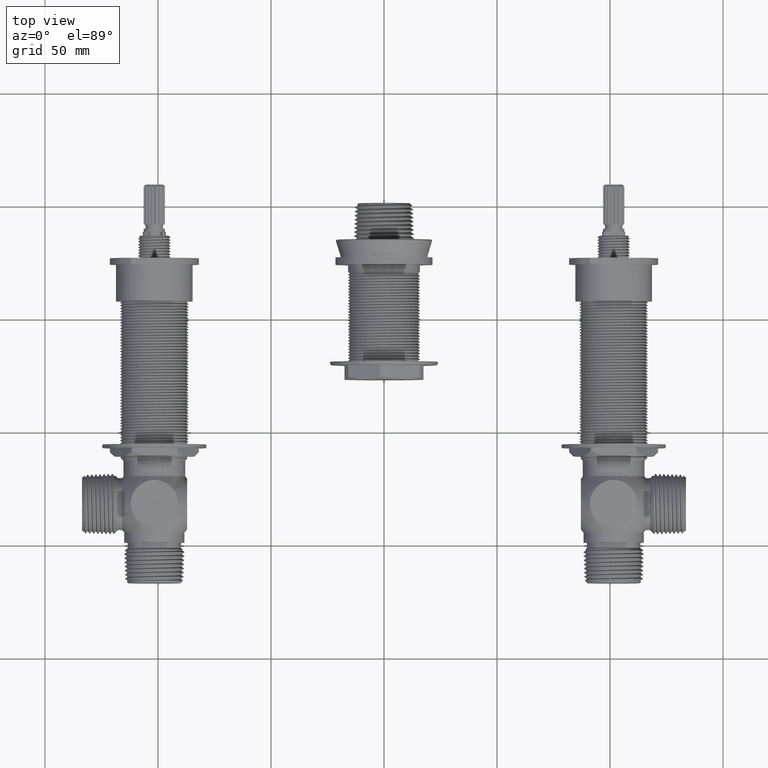
[diagram: clean part render]
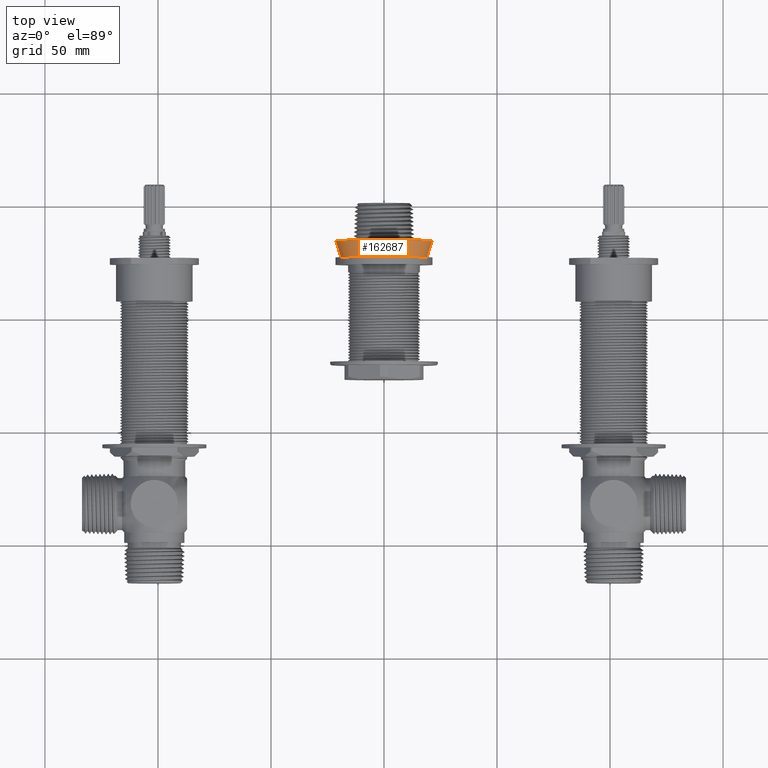
[diagram: same view with one face highlighted and labeled with its STEP entity id]
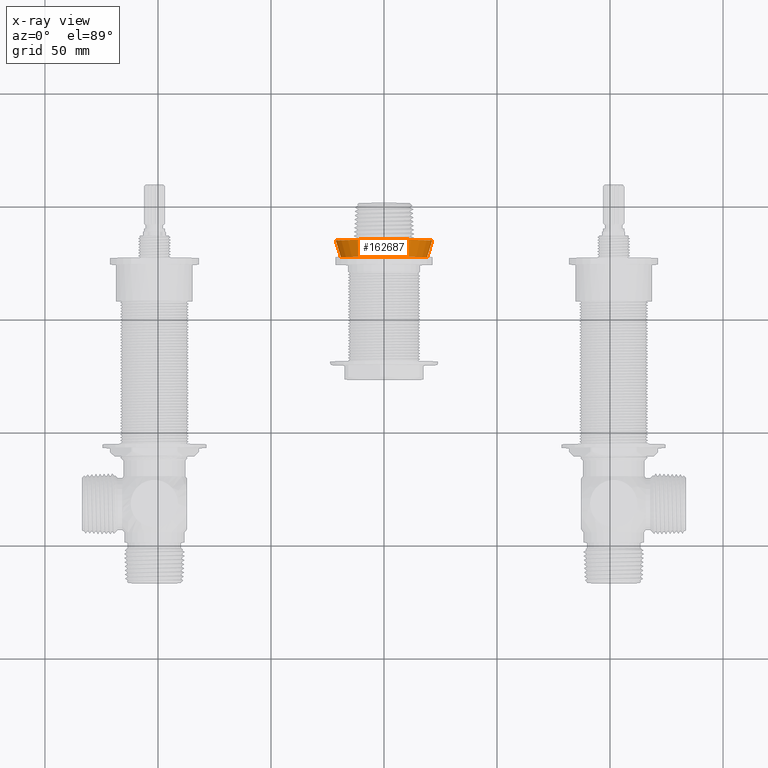
[diagram: x-ray of the same camera — body ghosted, the highlighted face saturated]
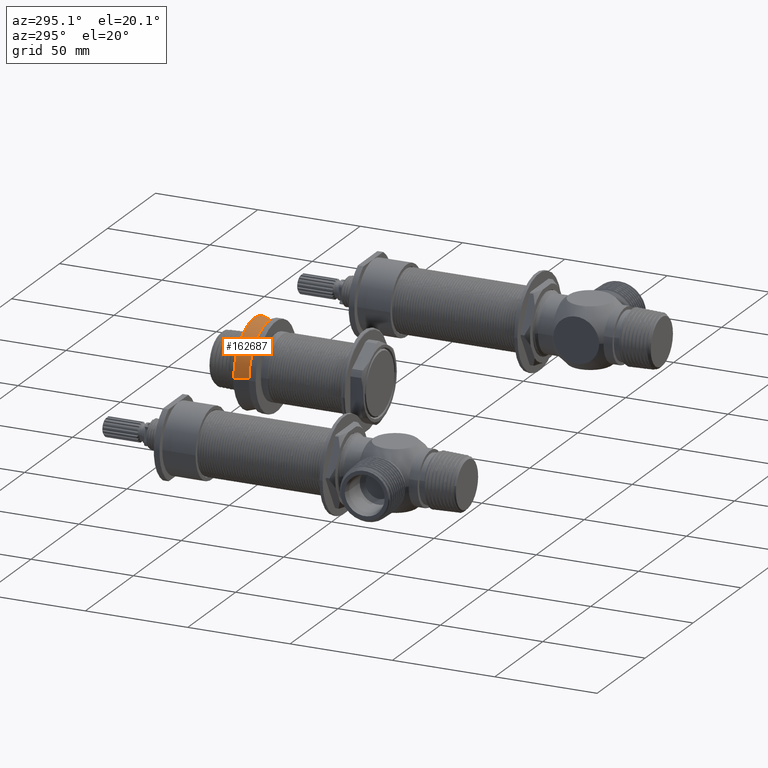
[diagram: same view with one face highlighted and labeled with its STEP entity id]
A machine part, top view. The second image highlights one B-rep face of the part: STEP entity #162687.
The next image is the same camera in x-ray: the body ghosted, the highlighted face saturated — about 0% of this face is hidden behind the body in this view.
A second angle (auxiliary view) of the same face is appended — the face is thin or edge-on in the first view.
In plain terms, the highlighted conical surface has half-angle 17.057 deg.
Its self-contained STEP definition (entity closure, byte-faithful):
#145542=CARTESIAN_POINT('',(0.E0,1.364682891645E0,0.E0));
#145543=DIRECTION('',(0.E0,1.E0,0.E0));
#145544=DIRECTION('',(-1.E0,0.E0,0.E0));
#145545=AXIS2_PLACEMENT_3D('',#145542,#145543,#145544);
#145550=CARTESIAN_POINT('',(0.E0,1.071987E0,0.E0));
#145551=DIRECTION('',(0.E0,-1.E0,0.E0));
#145552=DIRECTION('',(1.E0,0.E0,0.E0));
#145553=AXIS2_PLACEMENT_3D('',#145550,#145551,#145552);
#145596=DIRECTION('',(-2.933225153755E-1,9.560135469614E-1,
-6.094008620866E-10));
#145597=VECTOR('',#145596,3.061627435593E-1);
#145598=CARTESIAN_POINT('',(-7.5E-1,1.071987E0,0.E0));
#145599=LINE('',#145598,#145597);
#145611=DIRECTION('',(2.933225153755E-1,9.560135469614E-1,6.094012428335E-10));
#145612=VECTOR('',#145611,3.061627435593E-1);
#145613=CARTESIAN_POINT('',(7.5E-1,1.071987E0,0.E0));
#145614=LINE('',#145613,#145612);
#150937=CARTESIAN_POINT('',(7.5E-1,1.071987E0,0.E0));
#150938=CARTESIAN_POINT('',(-7.5E-1,1.071987E0,0.E0));
#150939=VERTEX_POINT('',#150937);
#150940=VERTEX_POINT('',#150938);
#151127=CARTESIAN_POINT('',(-8.398044213002E-1,1.364682891645E0,0.E0));
#151128=CARTESIAN_POINT('',(8.398044213002E-1,1.364682891645E0,0.E0));
#151129=VERTEX_POINT('',#151127);
#151130=VERTEX_POINT('',#151128);
#162673=CARTESIAN_POINT('',(0.E0,1.218334957353E0,0.E0));
#162674=DIRECTION('',(0.E0,1.E0,0.E0));
#162675=DIRECTION('',(1.E0,0.E0,0.E0));
#162676=AXIS2_PLACEMENT_3D('',#162673,#162674,#162675);
#162677=CONICAL_SURFACE('',#162676,7.949022141877E-1,1.705696557662E1);
#162679=ORIENTED_EDGE('',*,*,#162678,.T.);
#162681=ORIENTED_EDGE('',*,*,#162680,.F.);
#162682=ORIENTED_EDGE('',*,*,#162654,.T.);
#162684=ORIENTED_EDGE('',*,*,#162683,.T.);
#162685=EDGE_LOOP('',(#162679,#162681,#162682,#162684));
#162686=FACE_OUTER_BOUND('',#162685,.F.);
#145546=CIRCLE('',#145545,8.398044213002E-1);
#145554=CIRCLE('',#145553,7.5E-1);
#162654=EDGE_CURVE('',#150939,#150940,#145554,.T.);
#162678=EDGE_CURVE('',#151129,#151130,#145546,.T.);
#162680=EDGE_CURVE('',#150939,#151130,#145614,.T.);
#162683=EDGE_CURVE('',#150940,#151129,#145599,.T.);
#162687=ADVANCED_FACE('',(#162686),#162677,.T.);